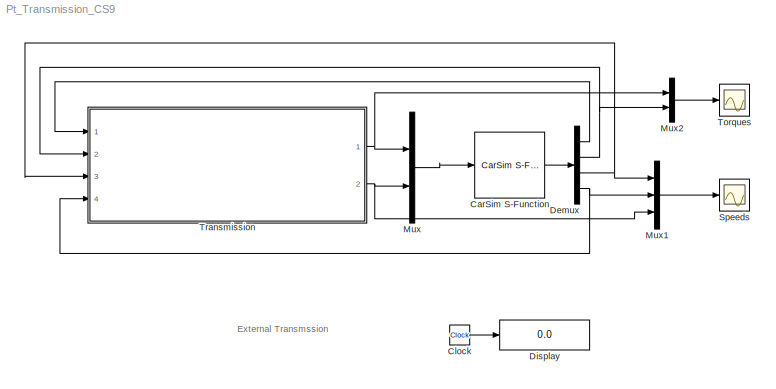
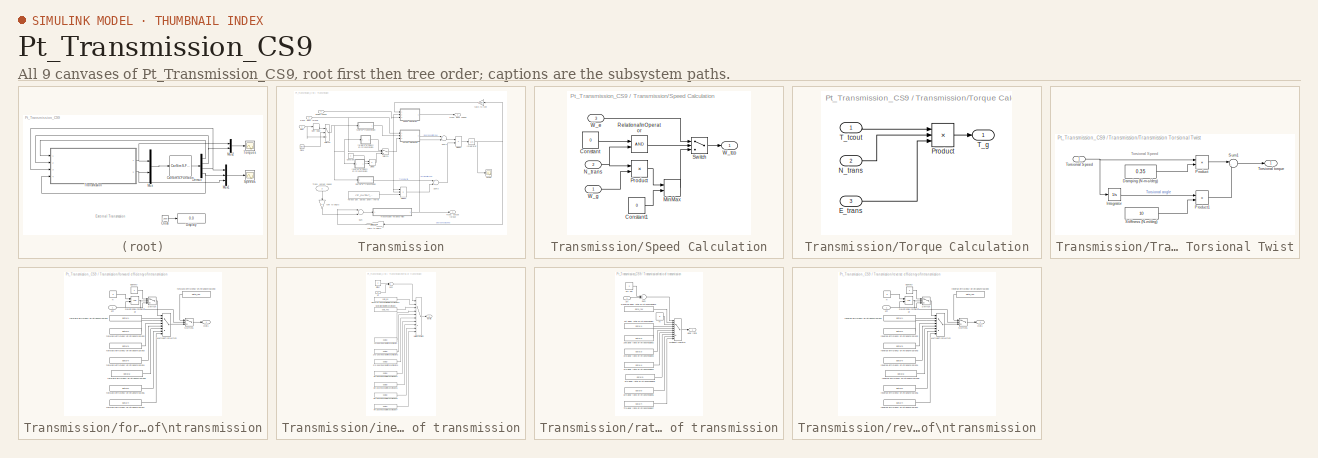
[diagram: thumbnail index - all 9 canvases of the model, root first then tree order]
MODEL Pt_Transmission_CS9
KIND model
CONFIG PreLoadFcn = cd Extensions/Simulink/pt_transmission	\nmengine_carpet_eclass	\ntorq_conv_map_eclass	\nRun_ft4wd_eclass	\ncd ../../..
BLOCK [Reference] CarSim S-Function  REF=Solver_SF/CarSim S-Function
  Ports = [1, 1]
  Priority = 1
  SID = 1
  SIMFILE = simfile.sim
  SourceBlock = Solver_SF/CarSim S-Function
  SourceType = Vehicle math model library
BLOCK [Clock] Clock
  Decimation = 10
  SID = 2
BLOCK [Demux] Demux
  Ports = [1, 4]
  SID = 3
BLOCK [Display] Display
  Decimation = 1
  Lockdown = off
  Ports = [1]
  SID = 4
BLOCK [Mux] Mux
  DisplayOption = bar
  Inputs = 2
  Ports = [2, 1]
  SID = 6
BLOCK [Mux] Mux1
  DisplayOption = bar
  Inputs = 3
  Ports = [3, 1]
  SID = 7
BLOCK [Mux] Mux2
  DisplayOption = bar
  Inputs = 2
  Ports = [2, 1]
  SID = 8
BLOCK [Scope] Speeds
  DataFormat = StructureWithTime
  Floating = off
  LimitDataPoints = off
  NumInputPorts = 1
  Ports = [1]
  SID = 9
  SaveName = ScopeData1
  YMax = 4335.33
  YMin = -65.8683
BLOCK [Scope] Torques
  DataFormat = StructureWithTime
  Floating = off
  LimitDataPoints = off
  NumInputPorts = 1
  Ports = [1]
  SID = 10
  YMax = 3000
  YMin = -500
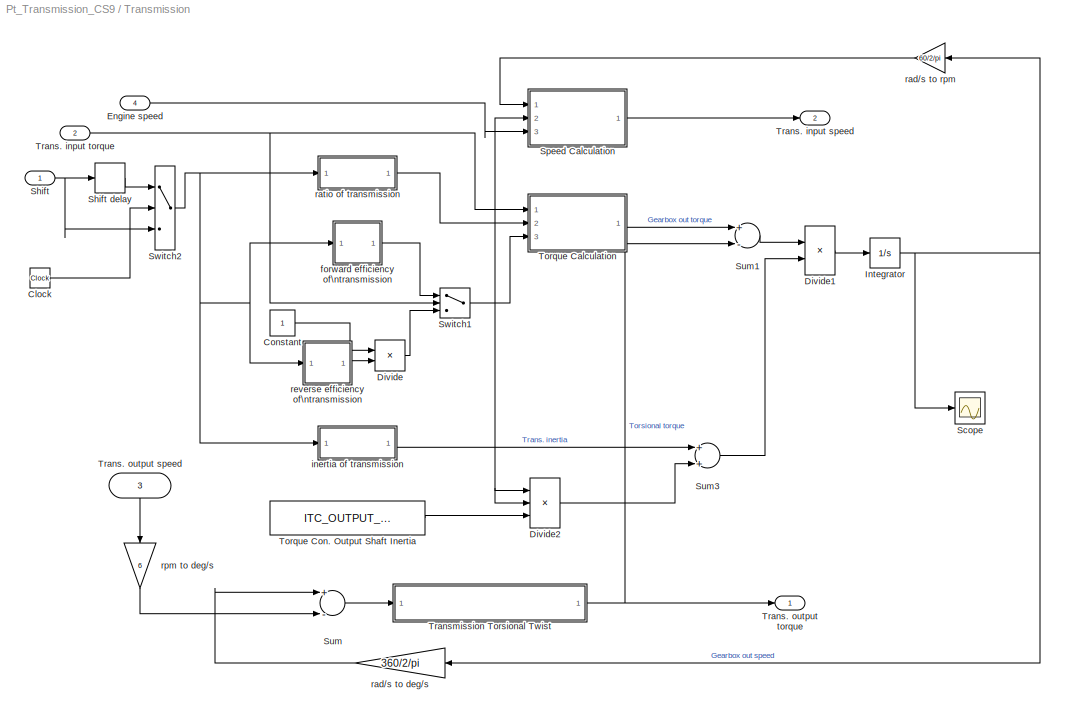
BLOCK [SubSystem] Transmission
  FunctionWithSeparateData = off
  MaskHideContents = off
  MinAlgLoopOccurrences = off
  Opaque = off
  Ports = [4, 2]
  PropExecContextOutsideSubsystem = off
  RTWSystemCode = Auto
  RequestExecContextInheritance = off
  SID = 11
BLOCK [Clock] Transmission/Clock
  Decimation = 10
  SID = 16
BLOCK [Constant] Transmission/Constant
  SID = 17
BLOCK [Product] Transmission/Divide
  Inputs = */
  Ports = [2, 1]
  RndMeth = Floor
  SID = 18
  SaturateOnIntegerOverflow = off
BLOCK [Product] Transmission/Divide1
  Inputs = */
  Ports = [2, 1]
  RndMeth = Floor
  SID = 19
  SaturateOnIntegerOverflow = off
BLOCK [Product] Transmission/Divide2
  Inputs = ***
  Ports = [3, 1]
  RndMeth = Floor
  SID = 20
  SaturateOnIntegerOverflow = off
BLOCK [Inport] Transmission/Engine speed
  IconDisplay = Port number
  Port = 4
  SID = 15
BLOCK [Integrator] Transmission/Integrator
  Ports = [1, 1]
  SID = 21
BLOCK [Scope] Transmission/Scope
  DataFormat = StructureWithTime
  Floating = off
  LimitDataPoints = off
  NumInputPorts = 1
  Ports = [1]
  SID = 22
  SaveName = ScopeData2
  YMax = 3000
  YMin = -500
BLOCK [Inport] Transmission/Shift
  IconDisplay = Port number
  SID = 12
BLOCK [TransportDelay] Transmission/Shift delay
  DelayTime = 0
  Ports = [1, 1]
  SID = 23
BLOCK [SubSystem] Transmission/Speed Calculation
  FunctionWithSeparateData = off
  MaskHideContents = off
  MinAlgLoopOccurrences = off
  Opaque = off
  Ports = [3, 1]
  PropExecContextOutsideSubsystem = off
  RTWSystemCode = Auto
  RequestExecContextInheritance = off
  SID = 24
BLOCK [Constant] Transmission/Speed Calculation/Constant
  SID = 28
  Value = 0
BLOCK [Constant] Transmission/Speed Calculation/Constant1
  SID = 29
  Value = 0
BLOCK [MinMax] Transmission/Speed Calculation/MinMax
  Function = max
  Inputs = 2
  Ports = [2, 1]
  SID = 30
BLOCK [Inport] Transmission/Speed Calculation/N_trans
  IconDisplay = Port number
  Port = 2
  SID = 26
BLOCK [Product] Transmission/Speed Calculation/Product
  Ports = [2, 1]
  RndMeth = Floor
  SID = 31
BLOCK [RelationalOperator] Transmission/Speed Calculation/Relational\nOperator
  Ports = [2, 1]
  SID = 32
BLOCK [Switch] Transmission/Speed Calculation/Switch
  SID = 33
  Threshold = 0.5
BLOCK [Inport] Transmission/Speed Calculation/W_e
  IconDisplay = Port number
  Port = 3
  SID = 27
BLOCK [Inport] Transmission/Speed Calculation/W_g
  IconDisplay = Port number
  SID = 25
BLOCK [Outport] Transmission/Speed Calculation/W_tco
  IconDisplay = Port number
  SID = 34
BLOCK [Sum] Transmission/Sum
  Inputs = +-
  Ports = [2, 1]
  SID = 35
BLOCK [Sum] Transmission/Sum1
  Inputs = +-
  Ports = [2, 1]
  SID = 36
BLOCK [Sum] Transmission/Sum3
  Ports = [2, 1]
  SID = 37
BLOCK [Switch] Transmission/Switch1
  SID = 38
BLOCK [Switch] Transmission/Switch2
  SID = 39
  Threshold = 0.5
BLOCK [SubSystem] Transmission/Torque Calculation
  FunctionWithSeparateData = off
  MaskHideContents = off
  MinAlgLoopOccurrences = off
  Opaque = off
  Ports = [3, 1]
  PropExecContextOutsideSubsystem = off
  RTWSystemCode = Auto
  RequestExecContextInheritance = off
  SID = 40
BLOCK [Inport] Transmission/Torque Calculation/E_trans
  IconDisplay = Port number
  Port = 3
  SID = 43
BLOCK [Inport] Transmission/Torque Calculation/N_trans
  IconDisplay = Port number
  Port = 2
  SID = 42
BLOCK [Product] Transmission/Torque Calculation/Product
  Inputs = 3
  Ports = [3, 1]
  RndMeth = Floor
  SID = 44
BLOCK [Outport] Transmission/Torque Calculation/T_g
  IconDisplay = Port number
  SID = 45
BLOCK [Inport] Transmission/Torque Calculation/T_tcout
  IconDisplay = Port number
  SID = 41
BLOCK [Constant] Transmission/Torque Con. Output Shaft Inertia
  SID = 46
  Value = ITC_OUTPUT_SHAFT
BLOCK [Outport] Transmission/Trans. input speed
  IconDisplay = Port number
  Port = 2
  SID = 124
BLOCK [Inport] Transmission/Trans. input torque
  IconDisplay = Port number
  Port = 2
  SID = 13
BLOCK [Inport] Transmission/Trans. output speed
  IconDisplay = Port number
  Port = 3
  SID = 14
BLOCK [Outport] Transmission/Trans. output torque
  IconDisplay = Port number
  SID = 123
BLOCK [SubSystem] Transmission/Transmission Torsional Twist
  FunctionWithSeparateData = off
  MaskHideContents = off
  MinAlgLoopOccurrences = off
  Opaque = off
  Ports = [1, 1]
  PropExecContextOutsideSubsystem = off
  RTWSystemCode = Auto
  RequestExecContextInheritance = off
  SID = 47
BLOCK [Constant] Transmission/Transmission Torsional Twist/Damping (N-m-s//deg)
  SID = 49
  Value = 0.35
BLOCK [Integrator] Transmission/Transmission Torsional Twist/Integrator
  Ports = [1, 1]
  SID = 50
BLOCK [Product] Transmission/Transmission Torsional Twist/Product
  Ports = [2, 1]
  RndMeth = Floor
  SID = 51
BLOCK [Product] Transmission/Transmission Torsional Twist/Product1
  Ports = [2, 1]
  RndMeth = Floor
  SID = 52
BLOCK [Constant] Transmission/Transmission Torsional Twist/Stiffness (N-m//deg)
  SID = 53
  Value = 10
BLOCK [Sum] Transmission/Transmission Torsional Twist/Sum1
  IconShape = round
  Inputs = |++
  Ports = [2, 1]
  SID = 54
BLOCK [Inport] Transmission/Transmission Torsional Twist/Torsional Speed
  IconDisplay = Port number
  SID = 48
BLOCK [Outport] Transmission/Transmission Torsional Twist/Torsional torque
  IconDisplay = Port number
  SID = 55
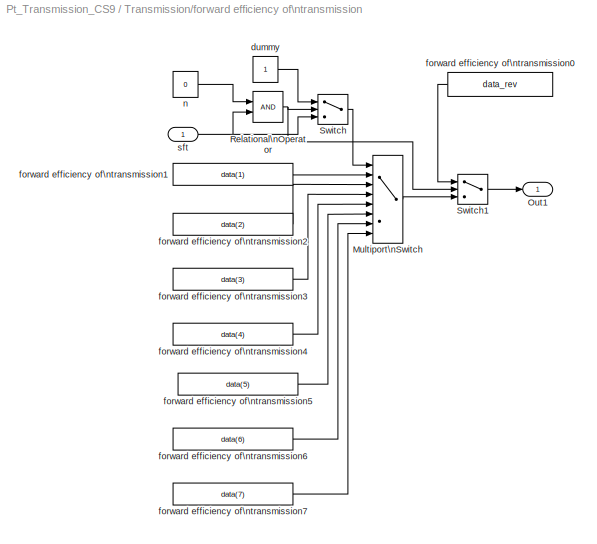
BLOCK [SubSystem] Transmission/forward efficiency of\ntransmission
  FunctionWithSeparateData = off
  MaskCallbackString = |
  MaskEnableString = on,on
  MaskHideContents = off
  MaskIconFrame = on
  MaskIconOpaque = on
  MaskIconRotate = none
  MaskIconUnits = autoscale
  MaskPortRotate = default
  MaskPromptString = gear|Reverse-gear
  MaskStyleString = edit,edit
  MaskToolTipString = on,on
  MaskTunableValueString = on,on
  MaskType = forward efficiency of transmission
  MaskValueString = R_EFF_TR_F|R_EFF_TR_F_REVERSE
  MaskVariables = data=@1;data_rev=@2;
  MaskVisibilityString = on,on
  MinAlgLoopOccurrences = off
  Opaque = off
  Ports = [1, 1]
  PropExecContextOutsideSubsystem = off
  RTWSystemCode = Auto
  RequestExecContextInheritance = off
  SID = 56
BLOCK [MultiPortSwitch] Transmission/forward efficiency of\ntransmission/Multiport\nSwitch
  Inputs = 7
  Ports = [8, 1]
  SID = 58
  zeroidx = off
BLOCK [Outport] Transmission/forward efficiency of\ntransmission/Out1
  IconDisplay = Port number
  SID = 72
BLOCK [RelationalOperator] Transmission/forward efficiency of\ntransmission/Relational\nOperator
  Ports = [2, 1]
  SID = 59
BLOCK [Switch] Transmission/forward efficiency of\ntransmission/Switch
  SID = 60
  Threshold = 0.5
BLOCK [Switch] Transmission/forward efficiency of\ntransmission/Switch1
  SID = 61
  Threshold = 0.5
BLOCK [Constant] Transmission/forward efficiency of\ntransmission/dummy
  SID = 62
BLOCK [Constant] Transmission/forward efficiency of\ntransmission/forward efficiency of\ntransmission0
  SID = 63
  Value = data_rev
BLOCK [Constant] Transmission/forward efficiency of\ntransmission/forward efficiency of\ntransmission1
  SID = 64
  Value = data(1)
BLOCK [Constant] Transmission/forward efficiency of\ntransmission/forward efficiency of\ntransmission2
  SID = 65
  Value = data(2)
BLOCK [Constant] Transmission/forward efficiency of\ntransmission/forward efficiency of\ntransmission3
  SID = 66
  Value = data(3)
BLOCK [Constant] Transmission/forward efficiency of\ntransmission/forward efficiency of\ntransmission4
  SID = 67
  Value = data(4)
BLOCK [Constant] Transmission/forward efficiency of\ntransmission/forward efficiency of\ntransmission5
  SID = 68
  Value = data(5)
BLOCK [Constant] Transmission/forward efficiency of\ntransmission/forward efficiency of\ntransmission6
  SID = 69
  Value = data(6)
BLOCK [Constant] Transmission/forward efficiency of\ntransmission/forward efficiency of\ntransmission7
  SID = 70
  Value = data(7)
BLOCK [Constant] Transmission/forward efficiency of\ntransmission/n
  SID = 71
  Value = 0
BLOCK [Inport] Transmission/forward efficiency of\ntransmission/sft
  IconDisplay = Port number
  SID = 57
BLOCK [SubSystem] Transmission/inertia of transmission
  FunctionWithSeparateData = off
  MaskCallbackString = ||
  MaskDescription = input:\n sft is must be 0 - 7\noutput:\n transmission gear inertia\n1st parameta: inertia of forward gears\n2nd parameta: inertia of neutral\n3rd parameta: inertia of reverse gear
  MaskEnableString = on,on,on
  MaskHideContents = off
  MaskIconFrame = on
  MaskIconOpaque = on
  MaskIconRotate = none
  MaskIconUnits = autoscale
  MaskPortRotate = default
  MaskPromptString = Inertia|Neutral inertia|Reverse-gear inertia
  MaskStyleString = edit,edit,edit
  MaskToolTipString = on,on,on
  MaskTunableValueString = on,on,on
  MaskType = forward efficiency of transmission
  MaskValueString = ITR|ITR_NEUTRAL|ITR_REVERSE
  MaskVariables = data=@1;data_neu=@2;data_rev=@3;
  MaskVisibilityString = on,on,on
  MinAlgLoopOccurrences = off
  Opaque = off
  Ports = [1, 1]
  PropExecContextOutsideSubsystem = off
  RTWSystemCode = Auto
  RequestExecContextInheritance = off
  SID = 73
BLOCK [Constant] Transmission/inertia of transmission/1st-gear inearia of\ntransmission
  SID = 75
  Value = data(1)
BLOCK [Constant] Transmission/inertia of transmission/2nd-gear inearia of\ntransmission2
  SID = 76
  Value = data(2)
BLOCK [Constant] Transmission/inertia of transmission/3rd-gear inearia of\ntransmission3
  SID = 77
  Value = data(3)
BLOCK [Constant] Transmission/inertia of transmission/4th-gear inearia of\ntransmission4
  SID = 78
  Value = data(4)
BLOCK [Constant] Transmission/inertia of transmission/5th-gear inearia of\ntransmission5
  SID = 79
  Value = data(5)
BLOCK [Constant] Transmission/inertia of transmission/6th-gear inearia of\ntransmission6
  SID = 80
  Value = data(6)
BLOCK [Constant] Transmission/inertia of transmission/7th-gear inearia of\ntransmission7
  SID = 81
  Value = data(7)
BLOCK [MultiPortSwitch] Transmission/inertia of transmission/Multiport\nSwitch
  Inputs = 9
  Ports = [10, 1]
  SID = 82
  zeroidx = off
BLOCK [Constant] Transmission/inertia of transmission/Neutral inertia of\ntransmission
  SID = 83
  Value = data_neu
BLOCK [Constant] Transmission/inertia of transmission/Reverse-gear ineatia of\ntransmission1
  SID = 84
  Value = data_rev
BLOCK [Sum] Transmission/inertia of transmission/Sum
  Inputs = 2
  Ports = [2, 1]
  SID = 85
BLOCK [Outport] Transmission/inertia of transmission/inertia
  IconDisplay = Port number
  SID = 87
BLOCK [Constant] Transmission/inertia of transmission/off set
  SID = 86
  Value = 2
BLOCK [Inport] Transmission/inertia of transmission/sft
  IconDisplay = Port number
  SID = 74
BLOCK [Gain] Transmission/rad//s to deg//s
  Gain = 360/2/pi
  SID = 88
BLOCK [Gain] Transmission/rad//s to rpm
  Gain = 60/2/pi
  SID = 89
BLOCK [SubSystem] Transmission/ratio of transmission
  FunctionWithSeparateData = off
  MaskCallbackString = |
  MaskDescription = input:\n sft is must be 0 - 7\noutput:\n transmission gear ratio\n when Nutral(0), it is zero\n1st parameta:\n must be vector\n2nd parameter:\n should be negative
  MaskEnableString = on,on
  MaskHideContents = off
  MaskIconFrame = on
  MaskIconOpaque = on
  MaskIconRotate = none
  MaskIconUnits = autoscale
  MaskPortRotate = default
  MaskPromptString = gear ratio|Reverse-gear ratio
  MaskStyleString = edit,edit
  MaskToolTipString = on,on
  MaskTunableValueString = on,on
  MaskType = forward efficiency of transmission
  MaskValueString = R_GEAR_TR|R_GEAR_TR_REVERSE
  MaskVariables = data=@1;data_rev=@2;
  MaskVisibilityString = on,on
  MinAlgLoopOccurrences = off
  Opaque = off
  Ports = [1, 1]
  PropExecContextOutsideSubsystem = off
  RTWSystemCode = Auto
  RequestExecContextInheritance = off
  SID = 90
BLOCK [Constant] Transmission/ratio of transmission/1st-gear ratio of\ntransmission
  SID = 92
  Value = data(1)
BLOCK [Constant] Transmission/ratio of transmission/2nd-gear ratio of\ntransmission2
  SID = 93
  Value = data(2)
BLOCK [Constant] Transmission/ratio of transmission/3rd-gear ratio of\ntransmission3
  SID = 94
  Value = data(3)
BLOCK [Constant] Transmission/ratio of transmission/4th-gear ratio of\ntransmission4
  SID = 95
  Value = data(4)
BLOCK [Constant] Transmission/ratio of transmission/5th-gear ratio of\ntransmission5
  SID = 96
  Value = data(5)
BLOCK [Constant] Transmission/ratio of transmission/6th-gear ratio of\ntransmission6
  SID = 97
  Value = data(6)
BLOCK [Constant] Transmission/ratio of transmission/7th-gear ratio of\ntransmission7
  SID = 98
  Value = data(7)
BLOCK [MultiPortSwitch] Transmission/ratio of transmission/Multiport\nSwitch
  Inputs = 9
  Ports = [10, 1]
  SID = 99
  zeroidx = off
BLOCK [Constant] Transmission/ratio of transmission/N
  SID = 100
  Value = 0
BLOCK [Constant] Transmission/ratio of transmission/Reverse-gear ratio of\ntransmission1
  SID = 101
  Value = data_rev
BLOCK [Sum] Transmission/ratio of transmission/Sum
  Inputs = 2
  Ports = [2, 1]
  SID = 102
BLOCK [Outport] Transmission/ratio of transmission/gear ratio
  IconDisplay = Port number
  SID = 104
BLOCK [Constant] Transmission/ratio of transmission/off set
  SID = 103
  Value = 2
BLOCK [Inport] Transmission/ratio of transmission/sft
  IconDisplay = Port number
  SID = 91
BLOCK [SubSystem] Transmission/reverse efficiency of\ntransmission
  FunctionWithSeparateData = off
  MaskCallbackString = |
  MaskEnableString = on,on
  MaskHideContents = off
  MaskIconFrame = on
  MaskIconOpaque = on
  MaskIconRotate = none
  MaskIconUnits = autoscale
  MaskPortRotate = default
  MaskPromptString = gear|Reverse-gear
  MaskStyleString = edit,edit
  MaskToolTipString = on,on
  MaskTunableValueString = on,on
  MaskType = reverse efficiency of transmission
  MaskValueString = R_EFF_TR_R|R_EFF_TR_R_REVERSE
  MaskVariables = data=@1;data_rev=@2;
  MaskVisibilityString = on,on
  MinAlgLoopOccurrences = off
  Opaque = off
  Ports = [1, 1]
  PropExecContextOutsideSubsystem = off
  RTWSystemCode = Auto
  RequestExecContextInheritance = off
  SID = 105
BLOCK [MultiPortSwitch] Transmission/reverse efficiency of\ntransmission/Multiport\nSwitch
  Inputs = 7
  Ports = [8, 1]
  SID = 107
  zeroidx = off
BLOCK [Outport] Transmission/reverse efficiency of\ntransmission/Out1
  IconDisplay = Port number
  SID = 121
BLOCK [RelationalOperator] Transmission/reverse efficiency of\ntransmission/Relational\nOperator
  Ports = [2, 1]
  SID = 108
BLOCK [Switch] Transmission/reverse efficiency of\ntransmission/Switch
  SID = 109
  Threshold = 0.5
BLOCK [Switch] Transmission/reverse efficiency of\ntransmission/Switch1
  SID = 110
  Threshold = 0.5
BLOCK [Constant] Transmission/reverse efficiency of\ntransmission/dummy
  SID = 111
BLOCK [Constant] Transmission/reverse efficiency of\ntransmission/n
  SID = 112
  Value = 0
BLOCK [Constant] Transmission/reverse efficiency of\ntransmission/reverse efficiency of\ntransmission0
  SID = 113
  Value = data_rev
BLOCK [Constant] Transmission/reverse efficiency of\ntransmission/reverse efficiency of\ntransmission1
  SID = 114
  Value = data(1)
BLOCK [Constant] Transmission/reverse efficiency of\ntransmission/reverse efficiency of\ntransmission2
  SID = 115
  Value = data(2)
BLOCK [Constant] Transmission/reverse efficiency of\ntransmission/reverse efficiency of\ntransmission3
  SID = 116
  Value = data(3)
BLOCK [Constant] Transmission/reverse efficiency of\ntransmission/reverse efficiency of\ntransmission4
  SID = 117
  Value = data(4)
BLOCK [Constant] Transmission/reverse efficiency of\ntransmission/reverse efficiency of\ntransmission5
  SID = 118
  Value = data(5)
BLOCK [Constant] Transmission/reverse efficiency of\ntransmission/reverse efficiency of\ntransmission6
  SID = 119
  Value = data(6)
BLOCK [Constant] Transmission/reverse efficiency of\ntransmission/reverse efficiency of\ntransmission7
  SID = 120
  Value = data(7)
BLOCK [Inport] Transmission/reverse efficiency of\ntransmission/sft
  IconDisplay = Port number
  SID = 106
BLOCK [Gain] Transmission/rpm to deg//s
  Gain = 6
  SID = 122
ANNOTATION (root): External Transmssion
ANNOTATION Transmission/Transmission Torsional Twist: Torsional Speed
LINE CarSim S-Function:1 -> Demux:1
LINE Clock:1 -> Display:1
LINE Demux:1 -> Transmission:1
NET Demux:2 -> Mux2:2, Transmission:2
NET Demux:3 -> Mux1:1, Transmission:3
NET Demux:4 -> Mux1:2, Transmission:4
LINE Mux1:1 -> Speeds:1
LINE Mux2:1 -> Torques:1
LINE Mux:1 -> CarSim S-Function:1
LINE Transmission/Clock:1 -> Transmission/Switch2:2
LINE Transmission/Constant:1 -> Transmission/Divide:1
LINE Transmission/Divide1:1 -> Transmission/Integrator:1
LINE Transmission/Divide2:1 -> Transmission/Sum3:2
LINE Transmission/Divide:1 -> Transmission/Switch1:3
LINE Transmission/Engine speed:1 -> Transmission/Speed Calculation:3
NET Transmission/Integrator:1 -> Transmission/Scope:1, Transmission/rad//s to deg//s:1, Transmission/rad//s to rpm:1
LINE Transmission/Shift delay:1 -> Transmission/Switch2:1
NET Transmission/Shift:1 -> Transmission/Shift delay:1, Transmission/Switch2:3
LINE Transmission/Speed Calculation/Constant1:1 -> Transmission/Speed Calculation/MinMax:2
LINE Transmission/Speed Calculation/Constant:1 -> Transmission/Speed Calculation/Relational\nOperator:1
LINE Transmission/Speed Calculation/MinMax:1 -> Transmission/Speed Calculation/Switch:3
NET Transmission/Speed Calculation/N_trans:1 -> Transmission/Speed Calculation/Product:1, Transmission/Speed Calculation/Relational\nOperator:2
LINE Transmission/Speed Calculation/Product:1 -> Transmission/Speed Calculation/MinMax:1
LINE Transmission/Speed Calculation/Relational\nOperator:1 -> Transmission/Speed Calculation/Switch:2
LINE Transmission/Speed Calculation/Switch:1 -> Transmission/Speed Calculation/W_tco:1
LINE Transmission/Speed Calculation/W_e:1 -> Transmission/Speed Calculation/Switch:1
LINE Transmission/Speed Calculation/W_g:1 -> Transmission/Speed Calculation/Product:2
LINE Transmission/Speed Calculation:1 -> Transmission/Trans. input speed:1
LINE Transmission/Sum1:1 -> Transmission/Divide1:1
LINE Transmission/Sum3:1 -> Transmission/Divide1:2
LINE Transmission/Sum:1 -> Transmission/Transmission Torsional Twist:1
LINE Transmission/Switch1:1 -> Transmission/Torque Calculation:3
NET Transmission/Switch2:1 -> Transmission/forward efficiency of\ntransmission:1, Transmission/inertia of transmission:1, Transmission/ratio of transmission:1, Transmission/reverse efficiency of\ntransmission:1
LINE Transmission/Torque Calculation/E_trans:1 -> Transmission/Torque Calculation/Product:3
LINE Transmission/Torque Calculation/N_trans:1 -> Transmission/Torque Calculation/Product:2
LINE Transmission/Torque Calculation/Product:1 -> Transmission/Torque Calculation/T_g:1
LINE Transmission/Torque Calculation/T_tcout:1 -> Transmission/Torque Calculation/Product:1
LINE Transmission/Torque Calculation:1 -> Transmission/Sum1:1
LINE Transmission/Torque Con. Output Shaft Inertia:1 -> Transmission/Divide2:3
NET Transmission/Trans. input torque:1 -> Transmission/Switch1:2, Transmission/Torque Calculation:1
LINE Transmission/Trans. output speed:1 -> Transmission/rpm to deg//s:1
LINE Transmission/Transmission Torsional Twist/Damping (N-m-s//deg):1 -> Transmission/Transmission Torsional Twist/Product:2
LINE Transmission/Transmission Torsional Twist/Integrator:1 -> Transmission/Transmission Torsional Twist/Product1:1
LINE Transmission/Transmission Torsional Twist/Product1:1 -> Transmission/Transmission Torsional Twist/Sum1:2
LINE Transmission/Transmission Torsional Twist/Product:1 -> Transmission/Transmission Torsional Twist/Sum1:1
LINE Transmission/Transmission Torsional Twist/Stiffness (N-m//deg):1 -> Transmission/Transmission Torsional Twist/Product1:2
LINE Transmission/Transmission Torsional Twist/Sum1:1 -> Transmission/Transmission Torsional Twist/Torsional torque:1
NET Transmission/Transmission Torsional Twist/Torsional Speed:1 -> Transmission/Transmission Torsional Twist/Integrator:1, Transmission/Transmission Torsional Twist/Product:1
NET Transmission/Transmission Torsional Twist:1 -> Transmission/Sum1:2, Transmission/Trans. output torque:1
LINE Transmission/forward efficiency of\ntransmission/Multiport\nSwitch:1 -> Transmission/forward efficiency of\ntransmission/Switch1:3
NET Transmission/forward efficiency of\ntransmission/Relational\nOperator:1 -> Transmission/forward efficiency of\ntransmission/Switch1:2, Transmission/forward efficiency of\ntransmission/Switch:2
LINE Transmission/forward efficiency of\ntransmission/Switch1:1 -> Transmission/forward efficiency of\ntransmission/Out1:1
LINE Transmission/forward efficiency of\ntransmission/Switch:1 -> Transmission/forward efficiency of\ntransmission/Multiport\nSwitch:1
LINE Transmission/forward efficiency of\ntransmission/dummy:1 -> Transmission/forward efficiency of\ntransmission/Switch:1
LINE Transmission/forward efficiency of\ntransmission/forward efficiency of\ntransmission0:1 -> Transmission/forward efficiency of\ntransmission/Switch1:1
LINE Transmission/forward efficiency of\ntransmission/forward efficiency of\ntransmission1:1 -> Transmission/forward efficiency of\ntransmission/Multiport\nSwitch:2
LINE Transmission/forward efficiency of\ntransmission/forward efficiency of\ntransmission2:1 -> Transmission/forward efficiency of\ntransmission/Multiport\nSwitch:3
LINE Transmission/forward efficiency of\ntransmission/forward efficiency of\ntransmission3:1 -> Transmission/forward efficiency of\ntransmission/Multiport\nSwitch:4
LINE Transmission/forward efficiency of\ntransmission/forward efficiency of\ntransmission4:1 -> Transmission/forward efficiency of\ntransmission/Multiport\nSwitch:5
LINE Transmission/forward efficiency of\ntransmission/forward efficiency of\ntransmission5:1 -> Transmission/forward efficiency of\ntransmission/Multiport\nSwitch:6
LINE Transmission/forward efficiency of\ntransmission/forward efficiency of\ntransmission6:1 -> Transmission/forward efficiency of\ntransmission/Multiport\nSwitch:7
LINE Transmission/forward efficiency of\ntransmission/forward efficiency of\ntransmission7:1 -> Transmission/forward efficiency of\ntransmission/Multiport\nSwitch:8
LINE Transmission/forward efficiency of\ntransmission/n:1 -> Transmission/forward efficiency of\ntransmission/Relational\nOperator:1
NET Transmission/forward efficiency of\ntransmission/sft:1 -> Transmission/forward efficiency of\ntransmission/Relational\nOperator:2, Transmission/forward efficiency of\ntransmission/Switch:3
LINE Transmission/forward efficiency of\ntransmission:1 -> Transmission/Switch1:1
LINE Transmission/inertia of transmission/1st-gear inearia of\ntransmission:1 -> Transmission/inertia of transmission/Multiport\nSwitch:4
LINE Transmission/inertia of transmission/2nd-gear inearia of\ntransmission2:1 -> Transmission/inertia of transmission/Multiport\nSwitch:5
LINE Transmission/inertia of transmission/3rd-gear inearia of\ntransmission3:1 -> Transmission/inertia of transmission/Multiport\nSwitch:6
LINE Transmission/inertia of transmission/4th-gear inearia of\ntransmission4:1 -> Transmission/inertia of transmission/Multiport\nSwitch:7
LINE Transmission/inertia of transmission/5th-gear inearia of\ntransmission5:1 -> Transmission/inertia of transmission/Multiport\nSwitch:8
LINE Transmission/inertia of transmission/6th-gear inearia of\ntransmission6:1 -> Transmission/inertia of transmission/Multiport\nSwitch:9
LINE Transmission/inertia of transmission/7th-gear inearia of\ntransmission7:1 -> Transmission/inertia of transmission/Multiport\nSwitch:10
LINE Transmission/inertia of transmission/Multiport\nSwitch:1 -> Transmission/inertia of transmission/inertia:1
LINE Transmission/inertia of transmission/Neutral inertia of\ntransmission:1 -> Transmission/inertia of transmission/Multiport\nSwitch:3
LINE Transmission/inertia of transmission/Reverse-gear ineatia of\ntransmission1:1 -> Transmission/inertia of transmission/Multiport\nSwitch:2
LINE Transmission/inertia of transmission/Sum:1 -> Transmission/inertia of transmission/Multiport\nSwitch:1
LINE Transmission/inertia of transmission/off set:1 -> Transmission/inertia of transmission/Sum:1
LINE Transmission/inertia of transmission/sft:1 -> Transmission/inertia of transmission/Sum:2
LINE Transmission/inertia of transmission:1 -> Transmission/Sum3:1
LINE Transmission/rad//s to deg//s:1 -> Transmission/Sum:1
LINE Transmission/rad//s to rpm:1 -> Transmission/Speed Calculation:1
LINE Transmission/ratio of transmission/1st-gear ratio of\ntransmission:1 -> Transmission/ratio of transmission/Multiport\nSwitch:4
LINE Transmission/ratio of transmission/2nd-gear ratio of\ntransmission2:1 -> Transmission/ratio of transmission/Multiport\nSwitch:5
LINE Transmission/ratio of transmission/3rd-gear ratio of\ntransmission3:1 -> Transmission/ratio of transmission/Multiport\nSwitch:6
LINE Transmission/ratio of transmission/4th-gear ratio of\ntransmission4:1 -> Transmission/ratio of transmission/Multiport\nSwitch:7
LINE Transmission/ratio of transmission/5th-gear ratio of\ntransmission5:1 -> Transmission/ratio of transmission/Multiport\nSwitch:8
LINE Transmission/ratio of transmission/6th-gear ratio of\ntransmission6:1 -> Transmission/ratio of transmission/Multiport\nSwitch:9
LINE Transmission/ratio of transmission/7th-gear ratio of\ntransmission7:1 -> Transmission/ratio of transmission/Multiport\nSwitch:10
LINE Transmission/ratio of transmission/Multiport\nSwitch:1 -> Transmission/ratio of transmission/gear ratio:1
LINE Transmission/ratio of transmission/N:1 -> Transmission/ratio of transmission/Multiport\nSwitch:3
LINE Transmission/ratio of transmission/Reverse-gear ratio of\ntransmission1:1 -> Transmission/ratio of transmission/Multiport\nSwitch:2
LINE Transmission/ratio of transmission/Sum:1 -> Transmission/ratio of transmission/Multiport\nSwitch:1
LINE Transmission/ratio of transmission/off set:1 -> Transmission/ratio of transmission/Sum:1
LINE Transmission/ratio of transmission/sft:1 -> Transmission/ratio of transmission/Sum:2
NET Transmission/ratio of transmission:1 -> Transmission/Divide2:1, Transmission/Divide2:2, Transmission/Speed Calculation:2, Transmission/Torque Calculation:2
LINE Transmission/reverse efficiency of\ntransmission/Multiport\nSwitch:1 -> Transmission/reverse efficiency of\ntransmission/Switch1:3
NET Transmission/reverse efficiency of\ntransmission/Relational\nOperator:1 -> Transmission/reverse efficiency of\ntransmission/Switch1:2, Transmission/reverse efficiency of\ntransmission/Switch:2
LINE Transmission/reverse efficiency of\ntransmission/Switch1:1 -> Transmission/reverse efficiency of\ntransmission/Out1:1
LINE Transmission/reverse efficiency of\ntransmission/Switch:1 -> Transmission/reverse efficiency of\ntransmission/Multiport\nSwitch:1
LINE Transmission/reverse efficiency of\ntransmission/dummy:1 -> Transmission/reverse efficiency of\ntransmission/Switch:1
LINE Transmission/reverse efficiency of\ntransmission/n:1 -> Transmission/reverse efficiency of\ntransmission/Relational\nOperator:1
LINE Transmission/reverse efficiency of\ntransmission/reverse efficiency of\ntransmission0:1 -> Transmission/reverse efficiency of\ntransmission/Switch1:1
LINE Transmission/reverse efficiency of\ntransmission/reverse efficiency of\ntransmission1:1 -> Transmission/reverse efficiency of\ntransmission/Multiport\nSwitch:2
LINE Transmission/reverse efficiency of\ntransmission/reverse efficiency of\ntransmission2:1 -> Transmission/reverse efficiency of\ntransmission/Multiport\nSwitch:3
LINE Transmission/reverse efficiency of\ntransmission/reverse efficiency of\ntransmission3:1 -> Transmission/reverse efficiency of\ntransmission/Multiport\nSwitch:4
LINE Transmission/reverse efficiency of\ntransmission/reverse efficiency of\ntransmission4:1 -> Transmission/reverse efficiency of\ntransmission/Multiport\nSwitch:5
LINE Transmission/reverse efficiency of\ntransmission/reverse efficiency of\ntransmission5:1 -> Transmission/reverse efficiency of\ntransmission/Multiport\nSwitch:6
LINE Transmission/reverse efficiency of\ntransmission/reverse efficiency of\ntransmission6:1 -> Transmission/reverse efficiency of\ntransmission/Multiport\nSwitch:7
LINE Transmission/reverse efficiency of\ntransmission/reverse efficiency of\ntransmission7:1 -> Transmission/reverse efficiency of\ntransmission/Multiport\nSwitch:8
NET Transmission/reverse efficiency of\ntransmission/sft:1 -> Transmission/reverse efficiency of\ntransmission/Relational\nOperator:2, Transmission/reverse efficiency of\ntransmission/Switch:3
LINE Transmission/reverse efficiency of\ntransmission:1 -> Transmission/Divide:2
LINE Transmission/rpm to deg//s:1 -> Transmission/Sum:2
NET Transmission:1 -> Mux2:1, Mux:1
NET Transmission:2 -> Mux1:3, Mux:2
note: NET lines group one-source signal fan-out (src -> all destinations, sorted); 1:1 wires keep LINE
